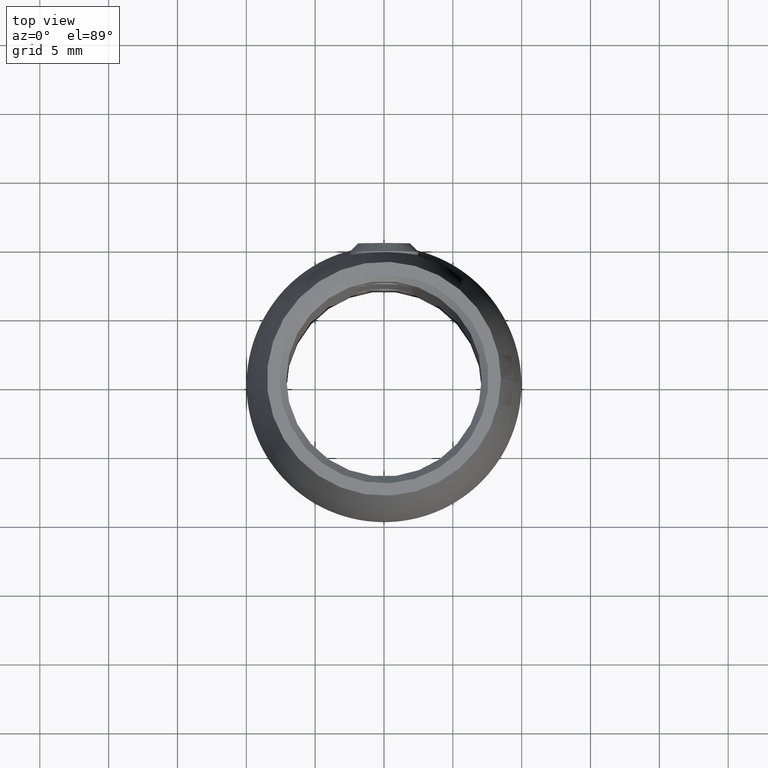
[diagram: clean part render]
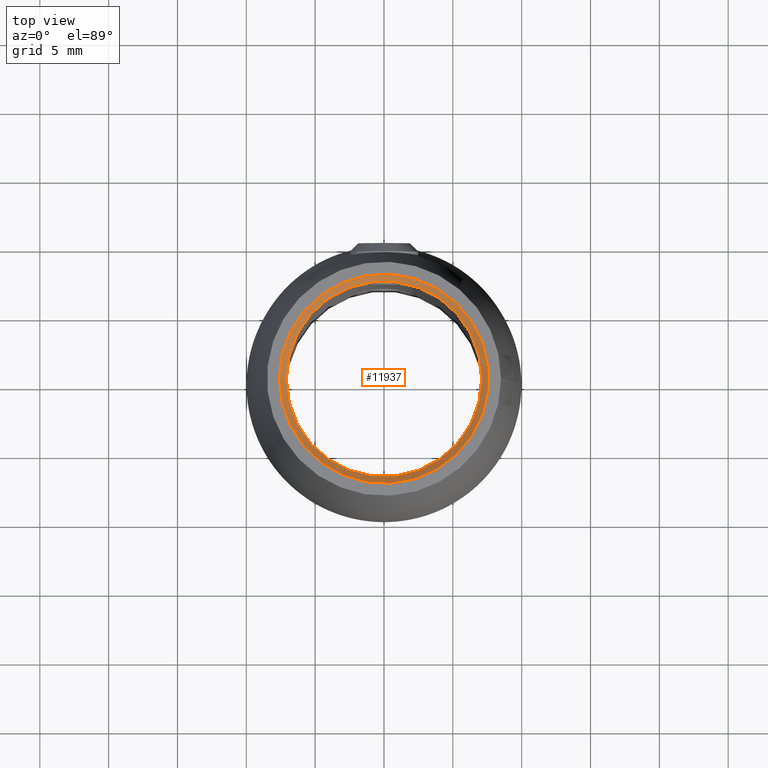
[diagram: same view with one face highlighted and labeled with its STEP entity id]
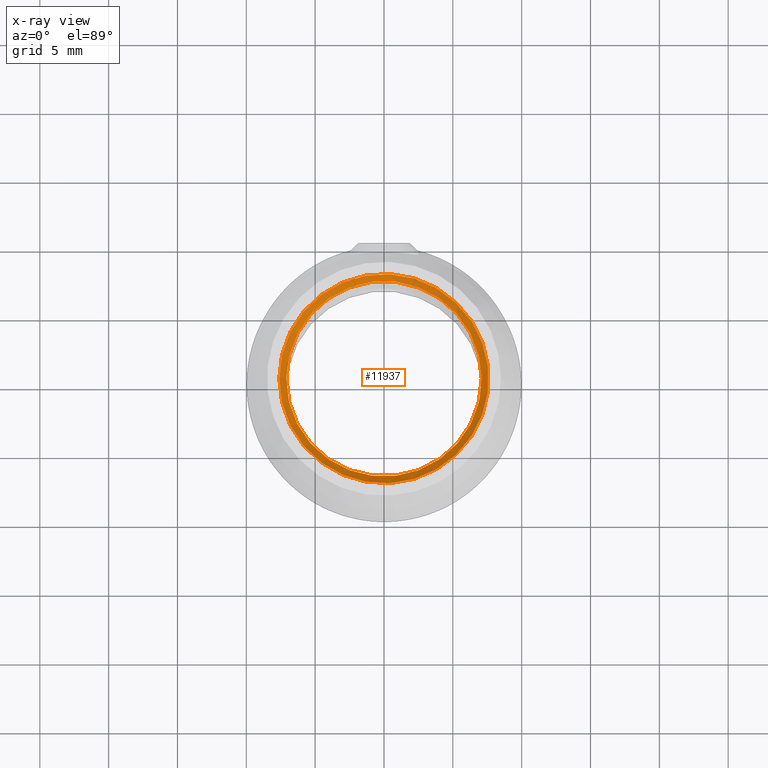
[diagram: x-ray of the same camera — body ghosted, the highlighted face saturated]
A machine part, top view. The second image highlights one B-rep face of the part: STEP entity #11937.
The next image is the same camera in x-ray: the body ghosted, the highlighted face saturated — about 0% of this face is hidden behind the body in this view.
In plain terms, the highlighted conical surface has half-angle 45 deg.
Its self-contained STEP definition (entity closure, byte-faithful):
#960 = CARTESIAN_POINT ( 'NONE',  ( 0.000000000000000000, 0.000000000000000000, 22.00000000000000000 ) ) ;
#1061 = ORIENTED_EDGE ( 'NONE', *, *, #6438, .F. ) ;
#1119 = CARTESIAN_POINT ( 'NONE',  ( -7.600000000000009415, 0.000000000000000000, 22.50000000000000711 ) ) ;
#1144 = DIRECTION ( 'NONE',  ( -1.000000000000000000, 0.000000000000000000, 0.000000000000000000 ) ) ;
#1181 = CARTESIAN_POINT ( 'NONE',  ( 0.000000000000000000, 0.000000000000000000, 22.00000000000000000 ) ) ;
#1311 = FACE_BOUND ( 'NONE', #1818, .T. ) ;
#1756 = CONICAL_SURFACE ( 'NONE', #4130, 7.099999999999999645, 0.7853981633974509435 ) ;
#1818 = EDGE_LOOP ( 'NONE', ( #6862 ) ) ;
#2141 = DIRECTION ( 'NONE',  ( 0.000000000000000000, 0.000000000000000000, 1.000000000000000000 ) ) ;
#2331 = VERTEX_POINT ( 'NONE', #9659 ) ;
#3285 = EDGE_CURVE ( 'NONE', #2331, #2331, #11878, .T. ) ;
#3924 = AXIS2_PLACEMENT_3D ( 'NONE', #7633, #9682, #6672 ) ;
#4116 = AXIS2_PLACEMENT_3D ( 'NONE', #1181, #2141, #1144 ) ;
#4130 = AXIS2_PLACEMENT_3D ( 'NONE', #960, #11530, #5917 ) ;
#4843 = CIRCLE ( 'NONE', #3924, 7.600000000000009415 ) ;
#5833 = FACE_OUTER_BOUND ( 'NONE', #9462, .T. ) ;
#5917 = DIRECTION ( 'NONE',  ( 1.000000000000000000, 0.000000000000000000, 0.000000000000000000 ) ) ;
#6438 = EDGE_CURVE ( 'NONE', #7147, #7147, #4843, .T. ) ;
#6672 = DIRECTION ( 'NONE',  ( -1.000000000000000000, 0.000000000000000000, 0.000000000000000000 ) ) ;
#6862 = ORIENTED_EDGE ( 'NONE', *, *, #3285, .F. ) ;
#7147 = VERTEX_POINT ( 'NONE', #1119 ) ;
#7633 = CARTESIAN_POINT ( 'NONE',  ( 0.000000000000000000, 0.000000000000000000, 22.50000000000000711 ) ) ;
#9462 = EDGE_LOOP ( 'NONE', ( #1061 ) ) ;
#9659 = CARTESIAN_POINT ( 'NONE',  ( -7.099999999999999645, 0.000000000000000000, 22.00000000000000000 ) ) ;
#9682 = DIRECTION ( 'NONE',  ( 0.000000000000000000, 0.000000000000000000, -1.000000000000000000 ) ) ;
#11530 = DIRECTION ( 'NONE',  ( 0.000000000000000000, 0.000000000000000000, 1.000000000000000000 ) ) ;
#11878 = CIRCLE ( 'NONE', #4116, 7.099999999999999645 ) ;
#11937 = ADVANCED_FACE ( 'NONE', ( #5833, #1311 ), #1756, .F. ) ;